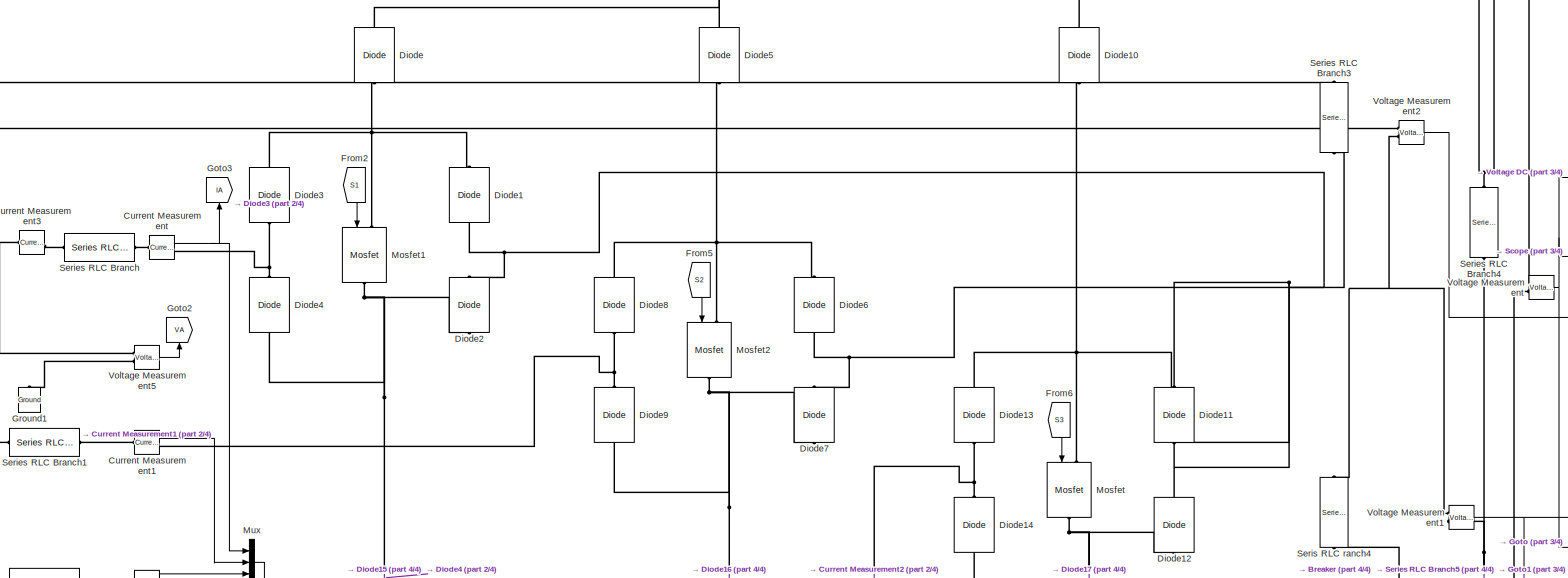
[diagram: root canvas - part 1/4, top center region]
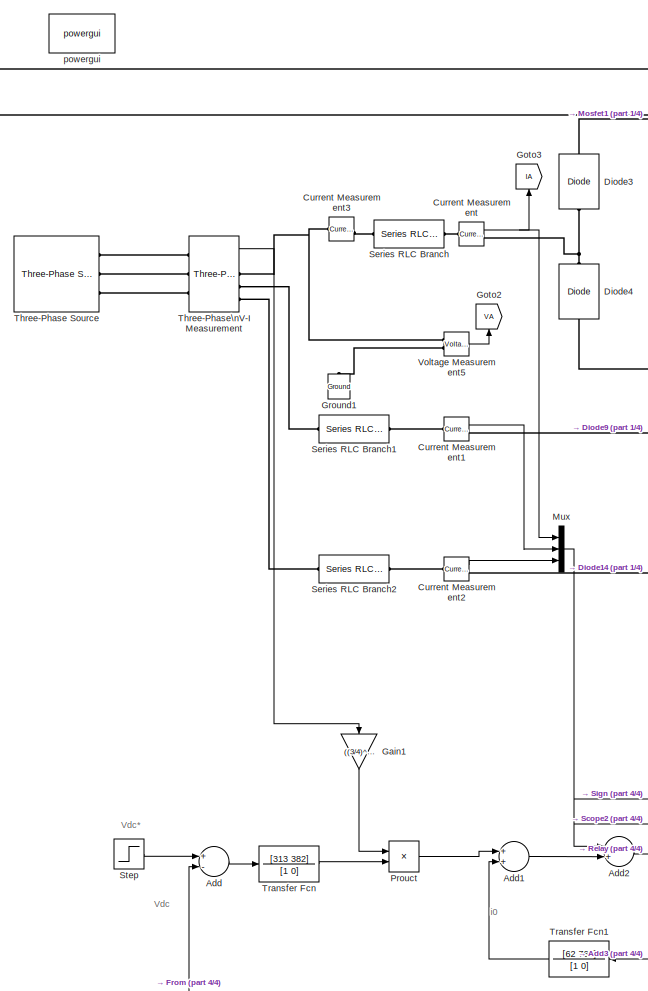
[diagram: root canvas - part 2/4, left side, full height]
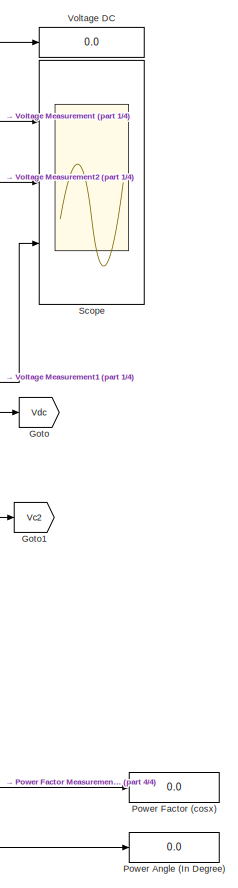
[diagram: root canvas - part 3/4, middle right region]
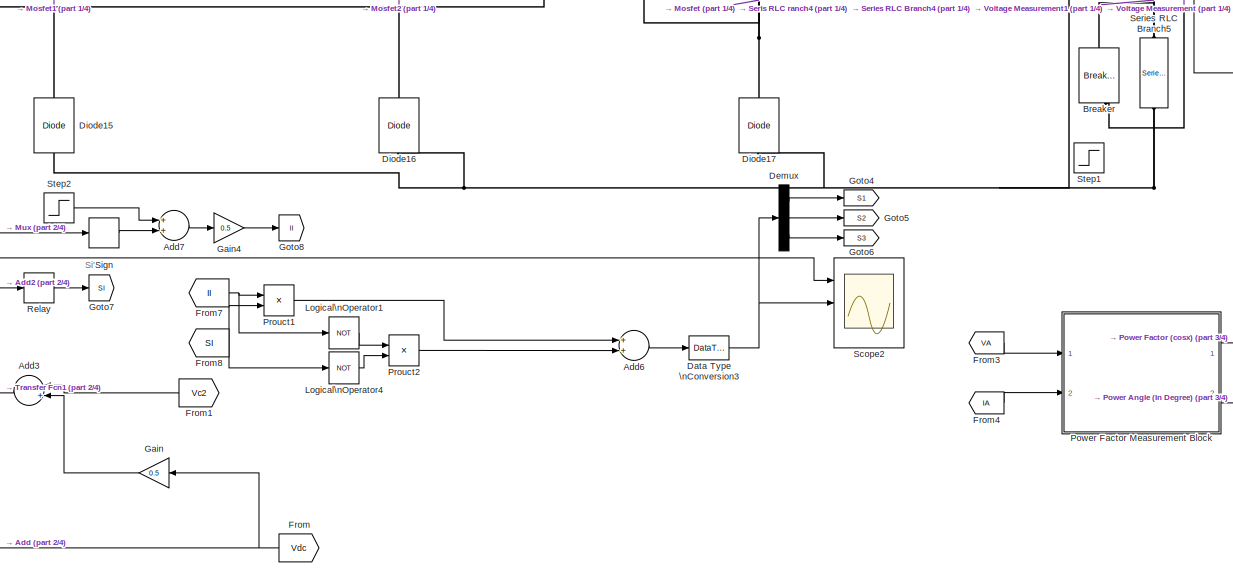
[diagram: root canvas - part 4/4, bottom center region]
MODEL Closed_Loop
KIND model
BLOCK [Sum] Add
  InputSameDT = off
  Inputs = +-
  OutDataTypeStr = Inherit: Inherit via internal rule
  Ports = [2, 1]
  SID = 248
  SaturateOnIntegerOverflow = off
BLOCK [Sum] Add1
  InputSameDT = off
  OutDataTypeStr = Inherit: Inherit via internal rule
  Ports = [2, 1]
  SID = 249
  SaturateOnIntegerOverflow = off
BLOCK [Sum] Add2
  InputSameDT = off
  Inputs = -+
  OutDataTypeStr = Inherit: Inherit via internal rule
  Ports = [2, 1]
  SID = 250
  SaturateOnIntegerOverflow = off
BLOCK [Sum] Add3
  InputSameDT = off
  Inputs = -+
  OutDataTypeStr = Inherit: Inherit via internal rule
  Ports = [2, 1]
  SID = 251
  SaturateOnIntegerOverflow = off
BLOCK [Sum] Add6
  InputSameDT = off
  OutDataTypeStr = Inherit: Inherit via internal rule
  Ports = [2, 1]
  SID = 269
  SaturateOnIntegerOverflow = off
BLOCK [Sum] Add7
  InputSameDT = off
  OutDataTypeStr = Inherit: Inherit via internal rule
  Ports = [2, 1]
  SID = 277
  SaturateOnIntegerOverflow = off
BLOCK [Reference] Breaker  REF=powerlib/Elements/Breaker
  BreakerResistance = 0.01
  External = on
  InitialState = 0
  Measurements = None
  MoreParameters = off
  NoBreakLoop = off
  Ports = [1, 0, 0, 0, 0, 1, 1]
  SID = 181
  SnubberCapacitance = inf
  SnubberResistance = 1e6
  SourceBlock = powerlib/Elements/Breaker
  SourceType = Breaker
  SwitchingTimes = [ 1/60  5/60 ]
BLOCK [Reference] Current Measurement  REF=powerlib/Measurements/Current Measurement
  OutputType = Complex
  PSBequivalent = 0
  PhasorSimulation = off
  Ports = [0, 1, 0, 0, 0, 1, 1]
  SID = 173
  SourceBlock = powerlib/Measurements/Current Measurement
  SourceType = Current Measurement
BLOCK [Reference] Current Measurement1  REF=powerlib/Measurements/Current Measurement
  OutputType = Complex
  PSBequivalent = 0
  PhasorSimulation = off
  Ports = [0, 1, 0, 0, 0, 1, 1]
  SID = 174
  SourceBlock = powerlib/Measurements/Current Measurement
  SourceType = Current Measurement
BLOCK [Reference] Current Measurement2  REF=powerlib/Measurements/Current Measurement
  OutputType = Complex
  PSBequivalent = 0
  PhasorSimulation = off
  Ports = [0, 1, 0, 0, 0, 1, 1]
  SID = 175
  SourceBlock = powerlib/Measurements/Current Measurement
  SourceType = Current Measurement
BLOCK [Reference] Current Measurement3  REF=powerlib/Measurements/Current Measurement
  OutputType = Complex
  PSBequivalent = 0
  PhasorSimulation = off
  Ports = [0, 1, 0, 0, 0, 1, 1]
  SID = 290
  SourceBlock = powerlib/Measurements/Current Measurement
  SourceType = Current Measurement
BLOCK [DataTypeConversion] Data Type \nConversion3
  OutDataTypeStr = boolean
  SID = 254
BLOCK [Demux] Demux
  DisplayOption = bar
  Outputs = 3
  Ports = [1, 3]
  SID = 172
BLOCK [Reference] Diode  REF=powerlib/Power\nElectronics/Diode
  Cs = 250e-9
  IC = 0
  Lon = 0
  Measurements = off
  Ports = [0, 0, 0, 0, 0, 1, 1]
  Ron = 0.001
  Rs = 500
  SID = 44
  SourceBlock = powerlib/Power\nElectronics/Diode
  SourceType = Diode
  UseSnubber = off
  Vf = 0.8
BLOCK [Reference] Diode1  REF=powerlib/Power\nElectronics/Diode
  Cs = 250e-9
  IC = 0
  Lon = 0
  Measurements = off
  Ports = [0, 0, 0, 0, 0, 1, 1]
  Ron = 0.001
  Rs = 500
  SID = 45
  SourceBlock = powerlib/Power\nElectronics/Diode
  SourceType = Diode
  UseSnubber = off
  Vf = 0.8
BLOCK [Reference] Diode10  REF=powerlib/Power\nElectronics/Diode
  Cs = 250e-9
  IC = 0
  Lon = 0
  Measurements = off
  Ports = [0, 0, 0, 0, 0, 1, 1]
  Ron = 0.001
  Rs = 500
  SID = 55
  SourceBlock = powerlib/Power\nElectronics/Diode
  SourceType = Diode
  UseSnubber = off
  Vf = 0.8
BLOCK [Reference] Diode11  REF=powerlib/Power\nElectronics/Diode
  Cs = 250e-9
  IC = 0
  Lon = 0
  Measurements = off
  Ports = [0, 0, 0, 0, 0, 1, 1]
  Ron = 0.001
  Rs = 500
  SID = 56
  SourceBlock = powerlib/Power\nElectronics/Diode
  SourceType = Diode
  UseSnubber = off
  Vf = 0.8
BLOCK [Reference] Diode12  REF=powerlib/Power\nElectronics/Diode
  Cs = 250e-9
  IC = 0
  Lon = 0
  Measurements = off
  Ports = [0, 0, 0, 0, 0, 1, 1]
  Ron = 0.001
  Rs = 500
  SID = 57
  SourceBlock = powerlib/Power\nElectronics/Diode
  SourceType = Diode
  UseSnubber = off
  Vf = 0.8
BLOCK [Reference] Diode13  REF=powerlib/Power\nElectronics/Diode
  Cs = 250e-9
  IC = 0
  Lon = 0
  Measurements = off
  Ports = [0, 0, 0, 0, 0, 1, 1]
  Ron = 0.001
  Rs = 500
  SID = 58
  SourceBlock = powerlib/Power\nElectronics/Diode
  SourceType = Diode
  UseSnubber = off
  Vf = 0.8
BLOCK [Reference] Diode14  REF=powerlib/Power\nElectronics/Diode
  Cs = 250e-9
  IC = 0
  Lon = 0
  Measurements = off
  Ports = [0, 0, 0, 0, 0, 1, 1]
  Ron = 0.001
  Rs = 500
  SID = 59
  SourceBlock = powerlib/Power\nElectronics/Diode
  SourceType = Diode
  UseSnubber = off
  Vf = 0.8
BLOCK [Reference] Diode15  REF=powerlib/Power\nElectronics/Diode
  Cs = 250e-9
  IC = 0
  Lon = 0
  Measurements = off
  Ports = [0, 0, 0, 0, 0, 1, 1]
  Ron = 0.001
  Rs = 500
  SID = 61
  SourceBlock = powerlib/Power\nElectronics/Diode
  SourceType = Diode
  UseSnubber = off
  Vf = 0.8
BLOCK [Reference] Diode16  REF=powerlib/Power\nElectronics/Diode
  Cs = 250e-9
  IC = 0
  Lon = 0
  Measurements = off
  Ports = [0, 0, 0, 0, 0, 1, 1]
  Ron = 0.001
  Rs = 500
  SID = 62
  SourceBlock = powerlib/Power\nElectronics/Diode
  SourceType = Diode
  UseSnubber = off
  Vf = 0.8
BLOCK [Reference] Diode17  REF=powerlib/Power\nElectronics/Diode
  Cs = 250e-9
  IC = 0
  Lon = 0
  Measurements = off
  Ports = [0, 0, 0, 0, 0, 1, 1]
  Ron = 0.001
  Rs = 500
  SID = 63
  SourceBlock = powerlib/Power\nElectronics/Diode
  SourceType = Diode
  UseSnubber = off
  Vf = 0.8
BLOCK [Reference] Diode2  REF=powerlib/Power\nElectronics/Diode
  Cs = 250e-9
  IC = 0
  Lon = 0
  Measurements = off
  Ports = [0, 0, 0, 0, 0, 1, 1]
  Ron = 0.001
  Rs = 500
  SID = 46
  SourceBlock = powerlib/Power\nElectronics/Diode
  SourceType = Diode
  UseSnubber = off
  Vf = 0.8
BLOCK [Reference] Diode3  REF=powerlib/Power\nElectronics/Diode
  Cs = 250e-9
  IC = 0
  Lon = 0
  Measurements = off
  Ports = [0, 0, 0, 0, 0, 1, 1]
  Ron = 0.001
  Rs = 500
  SID = 47
  SourceBlock = powerlib/Power\nElectronics/Diode
  SourceType = Diode
  UseSnubber = off
  Vf = 0.8
BLOCK [Reference] Diode4  REF=powerlib/Power\nElectronics/Diode
  Cs = 250e-9
  IC = 0
  Lon = 0
  Measurements = off
  Ports = [0, 0, 0, 0, 0, 1, 1]
  Ron = 0.001
  Rs = 500
  SID = 48
  SourceBlock = powerlib/Power\nElectronics/Diode
  SourceType = Diode
  UseSnubber = off
  Vf = 0.8
BLOCK [Reference] Diode5  REF=powerlib/Power\nElectronics/Diode
  Cs = 250e-9
  IC = 0
  Lon = 0
  Measurements = off
  Ports = [0, 0, 0, 0, 0, 1, 1]
  Ron = 0.001
  Rs = 500
  SID = 49
  SourceBlock = powerlib/Power\nElectronics/Diode
  SourceType = Diode
  UseSnubber = off
  Vf = 0.8
BLOCK [Reference] Diode6  REF=powerlib/Power\nElectronics/Diode
  Cs = 250e-9
  IC = 0
  Lon = 0
  Measurements = off
  Ports = [0, 0, 0, 0, 0, 1, 1]
  Ron = 0.001
  Rs = 500
  SID = 50
  SourceBlock = powerlib/Power\nElectronics/Diode
  SourceType = Diode
  UseSnubber = off
  Vf = 0.8
BLOCK [Reference] Diode7  REF=powerlib/Power\nElectronics/Diode
  Cs = 250e-9
  IC = 0
  Lon = 0
  Measurements = off
  Ports = [0, 0, 0, 0, 0, 1, 1]
  Ron = 0.001
  Rs = 500
  SID = 51
  SourceBlock = powerlib/Power\nElectronics/Diode
  SourceType = Diode
  UseSnubber = off
  Vf = 0.8
BLOCK [Reference] Diode8  REF=powerlib/Power\nElectronics/Diode
  Cs = 250e-9
  IC = 0
  Lon = 0
  Measurements = off
  Ports = [0, 0, 0, 0, 0, 1, 1]
  Ron = 0.001
  Rs = 500
  SID = 52
  SourceBlock = powerlib/Power\nElectronics/Diode
  SourceType = Diode
  UseSnubber = off
  Vf = 0.8
BLOCK [Reference] Diode9  REF=powerlib/Power\nElectronics/Diode
  Cs = 250e-9
  IC = 0
  Lon = 0
  Measurements = off
  Ports = [0, 0, 0, 0, 0, 1, 1]
  Ron = 0.001
  Rs = 500
  SID = 53
  SourceBlock = powerlib/Power\nElectronics/Diode
  SourceType = Diode
  UseSnubber = off
  Vf = 0.8
BLOCK [From] From
  GotoTag = Vdc
  SID = 162
BLOCK [From] From1
  GotoTag = Vc2
  SID = 165
BLOCK [From] From2
  GotoTag = S1
  SID = 245
BLOCK [From] From3
  GotoTag = VA
  SID = 213
BLOCK [From] From4
  GotoTag = IA
  SID = 214
BLOCK [From] From5
  GotoTag = S2
  SID = 246
BLOCK [From] From6
  GotoTag = S3
  SID = 247
BLOCK [From] From7
  GotoTag = II
  SID = 258
BLOCK [From] From8
  GotoTag = SI
  SID = 259
BLOCK [Gain] Gain
  Gain = 0.5
  OutDataTypeStr = Inherit: Inherit via internal rule
  ParamDataTypeStr = Inherit: Inherit via internal rule
  SID = 157
  SaturateOnIntegerOverflow = off
BLOCK [Gain] Gain1
  Gain = ((3/4)^(0.5))/400
  OutDataTypeStr = Inherit: Inherit via internal rule
  ParamDataTypeStr = Inherit: Inherit via internal rule
  SID = 169
  SaturateOnIntegerOverflow = off
BLOCK [Gain] Gain4
  Gain = 0.5
  OutDataTypeStr = Inherit: Inherit via internal rule
  ParamDataTypeStr = Inherit: Inherit via internal rule
  SID = 279
  SaturateOnIntegerOverflow = off
BLOCK [Goto] Goto
  GotoTag = Vdc
  SID = 161
BLOCK [Goto] Goto1
  GotoTag = Vc2
  SID = 164
BLOCK [Goto] Goto2
  GotoTag = VA
  SID = 233
BLOCK [Goto] Goto3
  GotoTag = IA
  SID = 237
BLOCK [Goto] Goto4
  GotoTag = S1
  SID = 242
BLOCK [Goto] Goto5
  GotoTag = S2
  SID = 243
BLOCK [Goto] Goto6
  GotoTag = S3
  SID = 244
BLOCK [Goto] Goto7
  GotoTag = SI
  SID = 256
BLOCK [Goto] Goto8
  GotoTag = II
  SID = 257
BLOCK [Reference] Ground1  REF=powerlib/Elements/Ground
  LConnTagsString = a
  Ports = [0, 0, 0, 0, 0, 1]
  SID = 234
  SourceBlock = powerlib/Elements/Ground
  SourceType = Ground
BLOCK [Logic] Logical\nOperator1
  AllPortsSameDT = off
  Operator = NOT
  OutDataTypeStr = boolean
  Ports = [1, 1]
  SID = 281
BLOCK [Logic] Logical\nOperator4
  AllPortsSameDT = off
  Operator = NOT
  OutDataTypeStr = boolean
  Ports = [1, 1]
  SID = 282
BLOCK [Reference] Mosfet  REF=powerlib/Power\nElectronics/Mosfet
  Cs = inf
  IC = 0
  Lon = 0
  Measurements = off
  Ports = [1, 0, 0, 0, 0, 1, 1]
  Rd = 0.01
  Ron = 0.1
  Rs = 1e5
  SID = 286
  SourceBlock = powerlib/Power\nElectronics/Mosfet
  SourceType = Mosfet
  Vfd = 0
BLOCK [Reference] Mosfet1  REF=powerlib/Power\nElectronics/Mosfet
  Cs = inf
  IC = 0
  Lon = 0
  Measurements = off
  Ports = [1, 0, 0, 0, 0, 1, 1]
  Rd = 0.01
  Ron = 0.1
  Rs = 1e5
  SID = 287
  SourceBlock = powerlib/Power\nElectronics/Mosfet
  SourceType = Mosfet
  Vfd = 0
BLOCK [Reference] Mosfet2  REF=powerlib/Power\nElectronics/Mosfet
  Cs = inf
  IC = 0
  Lon = 0
  Measurements = off
  Ports = [1, 0, 0, 0, 0, 1, 1]
  Rd = 0.01
  Ron = 0.1
  Rs = 1e5
  SID = 288
  SourceBlock = powerlib/Power\nElectronics/Mosfet
  SourceType = Mosfet
  Vfd = 0
BLOCK [Mux] Mux
  DisplayOption = bar
  Inputs = 3
  Ports = [3, 1]
  SID = 176
BLOCK [Display] Power Angle (In Degree)
  Decimation = 1
  Lockdown = off
  Ports = [1]
  SID = 215
BLOCK [Display] Power Factor (cosx)
  Decimation = 1
  Lockdown = off
  Ports = [1]
  SID = 216
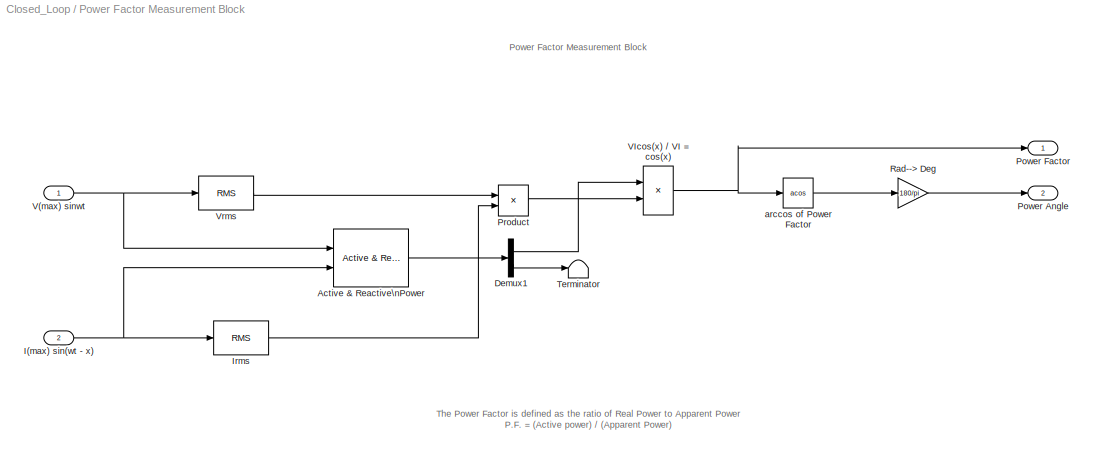
BLOCK [SubSystem] Power Factor Measurement Block
  FunctionWithSeparateData = off
  MaskHideContents = off
  MinAlgLoopOccurrences = off
  Opaque = off
  Ports = [2, 2]
  PropExecContextOutsideSubsystem = off
  RTWSystemCode = Auto
  RequestExecContextInheritance = off
  SID = 217
BLOCK [Reference] Power Factor Measurement Block/Active & Reactive\nPower  REF=powerlib_extras/Measurements/Active & Reactive\nPower
  Ports = [2, 1]
  SID = 220
  SourceBlock = powerlib_extras/Measurements/Active & Reactive\nPower
  SourceType = Active & Reactive Power
  f1 = 50
BLOCK [Demux] Power Factor Measurement Block/Demux1
  DisplayOption = bar
  Outputs = 2
  Ports = [1, 2]
  SID = 221
BLOCK [Inport] Power Factor Measurement Block/I(max) sin(wt - x)
  IconDisplay = Port number
  Port = 2
  SID = 219
BLOCK [Reference] Power Factor Measurement Block/Irms  REF=powerlib_extras/Measurements/RMS
  Ports = [1, 1]
  SID = 222
  SourceBlock = powerlib_extras/Measurements/RMS
  SourceType = RMS
  f1 = 50
BLOCK [Outport] Power Factor Measurement Block/Power Angle
  IconDisplay = Port number
  Port = 2
  SID = 230
BLOCK [Outport] Power Factor Measurement Block/Power Factor
  IconDisplay = Port number
  SID = 229
BLOCK [Product] Power Factor Measurement Block/Product
  InputSameDT = off
  OutDataTypeStr = Inherit: Inherit via internal rule
  Ports = [2, 1]
  SID = 223
  SaturateOnIntegerOverflow = off
BLOCK [Gain] Power Factor Measurement Block/Rad--> Deg
  Gain = 180/pi
  SID = 224
BLOCK [Terminator] Power Factor Measurement Block/Terminator
  SID = 225
BLOCK [Inport] Power Factor Measurement Block/V(max) sinwt
  IconDisplay = Port number
  SID = 218
BLOCK [Product] Power Factor Measurement Block/VIcos(x) // VI = cos(x)
  InputSameDT = off
  Inputs = */
  OutDataTypeStr = Inherit: Inherit via internal rule
  Ports = [2, 1]
  RndMeth = Floor
  SID = 226
  SaturateOnIntegerOverflow = off
BLOCK [Reference] Power Factor Measurement Block/Vrms  REF=powerlib_extras/Measurements/RMS
  Ports = [1, 1]
  SID = 227
  SourceBlock = powerlib_extras/Measurements/RMS
  SourceType = RMS
  f1 = 50
BLOCK [Trigonometry] Power Factor Measurement Block/arccos of Power Factor
  Operator = acos
  OutputSignalType = real
  Ports = [1, 1]
  SID = 228
BLOCK [Product] Prouct
  InputSameDT = off
  OutDataTypeStr = Inherit: Inherit via internal rule
  Ports = [2, 1]
  SID = 147
  SaturateOnIntegerOverflow = off
BLOCK [Product] Prouct1
  InputSameDT = off
  OutDataTypeStr = Inherit: Inherit via internal rule
  Ports = [2, 1]
  SID = 253
  SaturateOnIntegerOverflow = off
BLOCK [Product] Prouct2
  InputSameDT = off
  OutDataTypeStr = Inherit: Inherit via internal rule
  Ports = [2, 1]
  SID = 283
  SaturateOnIntegerOverflow = off
BLOCK [Relay] Relay
  InputProcessing = Elements as channels (sample based)
  OffSwitchValue = -0.01
  OnSwitchValue = 0.01
  SID = 152
BLOCK [Scope] Scope
  DataFormat = StructureWithTime
  Floating = off
  LimitDataPoints = off
  NumInputPorts = 3
  Ports = [3]
  SID = 78
  SampleTime = 0
  SaveName = Vdc
  SaveToWorkspace = on
  ShowLegends = off
  TimeRange = 0.4
  YMax = 800~475~326
  YMin = 762.5~445~315
  ZoomMode = xonly
BLOCK [Scope] Scope2
  DataFormat = StructureWithTime
  Floating = off
  NumInputPorts = 3
  Ports = [3]
  SID = 263
  SampleTime = 0
  SaveName = Isbc1
  SaveToWorkspace = on
  ShowLegends = off
  YMax = 150~1~100000
  YMin = -125~-0.1~-100000
  ZoomMode = xonly
BLOCK [Reference] Series RLC Branch  REF=powerlib/Elements/Series RLC Branch
  BranchType = L
  Capacitance = 1e-6
  Inductance = 20e-3
  InitialCurrent = 0
  InitialVoltage = 0
  LConnTagsString = __new0
  Measurements = None
  Ports = [0, 0, 0, 0, 0, 1, 1]
  RConnTagsString = __new0
  Resistance = 1
  SID = 65
  SetiL0 = off
  Setx0 = off
  SourceBlock = powerlib/Elements/Series RLC Branch
  SourceType = Series RLC Branch
BLOCK [Reference] Series RLC Branch1  REF=powerlib/Elements/Series RLC Branch
  BranchType = L
  Capacitance = 1e-6
  Inductance = 20e-3
  InitialCurrent = 0
  InitialVoltage = 0
  LConnTagsString = __new0
  Measurements = None
  Ports = [0, 0, 0, 0, 0, 1, 1]
  RConnTagsString = __new0
  Resistance = 1
  SID = 66
  SetiL0 = off
  Setx0 = off
  SourceBlock = powerlib/Elements/Series RLC Branch
  SourceType = Series RLC Branch
BLOCK [Reference] Series RLC Branch2  REF=powerlib/Elements/Series RLC Branch
  BranchType = L
  Capacitance = 1e-6
  Inductance = 20e-3
  InitialCurrent = 0
  InitialVoltage = 0
  LConnTagsString = __new0
  Measurements = None
  Ports = [0, 0, 0, 0, 0, 1, 1]
  RConnTagsString = __new0
  Resistance = 1
  SID = 67
  SetiL0 = off
  Setx0 = off
  SourceBlock = powerlib/Elements/Series RLC Branch
  SourceType = Series RLC Branch
BLOCK [Reference] Series RLC Branch3  REF=powerlib/Elements/Series RLC Branch
  BranchType = C
  Capacitance = 470e-6
  Inductance = 1e-3
  InitialCurrent = 0
  InitialVoltage = 0
  LConnTagsString = __new0
  Measurements = None
  Ports = [0, 0, 0, 0, 0, 1, 1]
  RConnTagsString = __new0
  Resistance = 1
  SID = 68
  SetiL0 = off
  Setx0 = off
  SourceBlock = powerlib/Elements/Series RLC Branch
  SourceType = Series RLC Branch
BLOCK [Reference] Series RLC Branch4  REF=powerlib/Elements/Series RLC Branch
  BranchType = R
  Capacitance = 1e-6
  Inductance = 1e-3
  InitialCurrent = 0
  InitialVoltage = 0
  LConnTagsString = __new0
  Measurements = None
  Ports = [0, 0, 0, 0, 0, 1, 1]
  RConnTagsString = __new0
  Resistance = 200
  SID = 238
  SetiL0 = off
  Setx0 = off
  SourceBlock = powerlib/Elements/Series RLC Branch
  SourceType = Series RLC Branch
BLOCK [Reference] Series RLC Branch5  REF=powerlib/Elements/Series RLC Branch
  BranchType = R
  Capacitance = 1e-6
  Inductance = 1e-3
  InitialCurrent = 0
  InitialVoltage = 0
  LConnTagsString = __new0
  Measurements = None
  Ports = [0, 0, 0, 0, 0, 1, 1]
  RConnTagsString = __new0
  Resistance = 200
  SID = 239
  SetiL0 = off
  Setx0 = off
  SourceBlock = powerlib/Elements/Series RLC Branch
  SourceType = Series RLC Branch
BLOCK [Reference] Seris RLC ranch4  REF=powerlib/Elements/Series RLC Branch
  BranchType = C
  Capacitance = 470e-6
  Inductance = 1e-3
  InitialCurrent = 0
  InitialVoltage = 0
  LConnTagsString = __new0
  Measurements = None
  Ports = [0, 0, 0, 0, 0, 1, 1]
  RConnTagsString = __new0
  Resistance = 1
  SID = 69
  SetiL0 = off
  Setx0 = off
  SourceBlock = powerlib/Elements/Series RLC Branch
  SourceType = Series RLC Branch
BLOCK [Signum] Sign
  SID = 252
BLOCK [Step] Step
  After = 750
  Before = 750
  SID = 167
  SampleTime = 0
  Time = 0
  VectorParams1D = off
BLOCK [Step] Step1
  SID = 182
  SampleTime = 0
  Time = 0.2
BLOCK [Step] Step2
  Before = 1
  SID = 285
  SampleTime = 0
  Time = 0
  VectorParams1D = off
BLOCK [Reference] Three-Phase Source  REF=powerlib/Electrical\nSources/Three-Phase Source
  BaseVoltage = 25e3
  BusType = swing
  Frequency = 50
  Inductance = 0
  InternalConnection = Yg
  PhaseAngle = 0
  Ports = [0, 0, 0, 0, 0, 0, 3]
  Pref = 0
  Qmax = inf
  Qmin = -inf
  Qref = 0
  Resistance = 0
  SID = 64
  ShortCircuitLevel = 100e6
  SourceBlock = powerlib/Electrical\nSources/Three-Phase Source
  SourceType = Three-Phase Source
  SpecifyImpedance = off
  Voltage = 400*(2^(0.5))
  XRratio = 7
BLOCK [Reference] Three-Phase\nV-I Measurement  REF=powerlib/Measurements/Three-Phase\nV-I Measurement
  CurrentMeasurement = yes
  Ipu = off
  LabelI = Iabc
  LabelV = Vabc
  OutputType = Complex
  PSBequivalent = 0
  Pbase = 100e6
  PhasorSimulation = off
  Ports = [0, 2, 0, 0, 0, 3, 3]
  SID = 72
  SetLabelI = off
  SetLabelV = off
  SourceBlock = powerlib/Measurements/Three-Phase\nV-I Measurement
  SourceType = Three-Phase VI Measurement
  Vbase = 500e3
  VoltageMeasurement = phase-to-ground
  Vpu = off
  VpuLL = off
BLOCK [TransferFcn] Transfer Fcn
  Denominator = [1 0]
  Numerator = [313 382]
  SID = 146
BLOCK [TransferFcn] Transfer Fcn1
  Denominator = [1 0]
  Numerator = [62 764]
  SID = 155
BLOCK [Display] Voltage DC
  Decimation = 1
  Lockdown = off
  Ports = [1]
  SID = 184
BLOCK [Reference] Voltage Measurement  REF=powerlib/Measurements/Voltage Measurement
  OutputType = Complex
  PSBequivalent = 0
  PhasorSimulation = off
  Ports = [0, 1, 0, 0, 0, 2]
  SID = 76
  SourceBlock = powerlib/Measurements/Voltage Measurement
  SourceType = Voltage Measurement
BLOCK [Reference] Voltage Measurement1  REF=powerlib/Measurements/Voltage Measurement
  OutputType = Complex
  PSBequivalent = 0
  PhasorSimulation = off
  Ports = [0, 1, 0, 0, 0, 2]
  SID = 163
  SourceBlock = powerlib/Measurements/Voltage Measurement
  SourceType = Voltage Measurement
BLOCK [Reference] Voltage Measurement2  REF=powerlib/Measurements/Voltage Measurement
  OutputType = Complex
  PSBequivalent = 0
  PhasorSimulation = off
  Ports = [0, 1, 0, 0, 0, 2]
  SID = 183
  SourceBlock = powerlib/Measurements/Voltage Measurement
  SourceType = Voltage Measurement
BLOCK [Reference] Voltage Measurement5  REF=powerlib/Measurements/Voltage Measurement
  OutputType = Complex
  PSBequivalent = 0
  PhasorSimulation = off
  Ports = [0, 1, 0, 0, 0, 2]
  SID = 235
  SourceBlock = powerlib/Measurements/Voltage Measurement
  SourceType = Voltage Measurement
BLOCK [Reference] powergui  REF=powerlib/powergui
  DisableRonSwitches = on
  DisableSnubberDevices = on
  DisableVfSwitches = on
  DisplayEquations = off
  DisplayStyle = 1
  EnableUseOfTLC = off
  ErrMax = 1e-4
  FreqAxis = off
  FunctionMessages = off
  HookPort = off
  Interpol = off
  Iterations = 50
  MaxFrequency = 1000
  Pbase = 100e6
  Ports = []
  Priority = 1
  ResistiveCurrentMeasurement = off
  RestoreLinks = warning
  SID = 20
  SPID = off
  SampleTime = 1/20000
  ShowGrid = off
  SolverType = Tustin
  SourceBlock = powerlib/powergui
  SourceType = PSB option menu block
  StartTime = 0.8
  SwTol = 0
  UnitsV = kV
  UnitsW = MW
  UserData = DataTag0
  UserDataPersistent = on
  Xlog = on
  Ylog = off
  ZoomFFT = off
  cycles = 2
  display = off
  echomessages = off
  frequency = 60
  frequencyindice = 50
  frequencyindicesteady = 1
  fundamental = 50
  methode = off
  save = off
  structure = Isbc1
  variable = ZData
  x0status = blocks
ANNOTATION (root): Si'
ANNOTATION (root): Vdc
ANNOTATION (root): Vdc*
ANNOTATION (root): i0
ANNOTATION Power Factor Measurement Block: Power Factor Measurement Block
ANNOTATION Power Factor Measurement Block: The Power Factor is defined as the ratio of Real Power to Apparent Power\nP.F. = (Active power) / (Apparent Power)
LINE Add1:1 -> Add2:2
LINE Add2:1 -> Relay:1
LINE Add3:1 -> Transfer Fcn1:1
LINE Add6:1 -> Data Type \nConversion3:1
LINE Add7:1 -> Gain4:1
LINE Add:1 -> Transfer Fcn:1
LINE Current Measurement1:1 -> Mux:2
LINE Current Measurement2:1 -> Mux:3
NET Current Measurement:1 -> Goto3:1, Mux:1
NET Data Type \nConversion3:1 -> Demux:1, Scope2:2
LINE Demux:1 -> Goto4:1
LINE Demux:2 -> Goto5:1
LINE Demux:3 -> Goto6:1
LINE From1:1 -> Add3:1
LINE From2:1 -> Mosfet1:1
LINE From3:1 -> Power Factor Measurement Block:1
LINE From4:1 -> Power Factor Measurement Block:2
LINE From5:1 -> Mosfet2:1
LINE From6:1 -> Mosfet:1
NET From7:1 -> Logical\nOperator1:1, Prouct1:1
NET From8:1 -> Logical\nOperator4:1, Prouct1:2
NET From:1 -> Add:2, Gain:1
LINE Gain1:1 -> Prouct:1
LINE Gain4:1 -> Goto8:1
LINE Gain:1 -> Add3:2
LINE Logical\nOperator1:1 -> Prouct2:1
LINE Logical\nOperator4:1 -> Prouct2:2
NET Mux:1 -> Add2:1, Scope2:1, Sign:1
LINE Power Factor Measurement Block/Active & Reactive\nPower:1 -> Power Factor Measurement Block/Demux1:1
LINE Power Factor Measurement Block/Demux1:1 -> Power Factor Measurement Block/VIcos(x) // VI = cos(x):1
LINE Power Factor Measurement Block/Demux1:2 -> Power Factor Measurement Block/Terminator:1
NET Power Factor Measurement Block/I(max) sin(wt - x):1 -> Power Factor Measurement Block/Active & Reactive\nPower:2, Power Factor Measurement Block/Irms:1
LINE Power Factor Measurement Block/Irms:1 -> Power Factor Measurement Block/Product:2
LINE Power Factor Measurement Block/Product:1 -> Power Factor Measurement Block/VIcos(x) // VI = cos(x):2
LINE Power Factor Measurement Block/Rad--> Deg:1 -> Power Factor Measurement Block/Power Angle:1
NET Power Factor Measurement Block/V(max) sinwt:1 -> Power Factor Measurement Block/Active & Reactive\nPower:1, Power Factor Measurement Block/Vrms:1
NET Power Factor Measurement Block/VIcos(x) // VI = cos(x):1 -> Power Factor Measurement Block/Power Factor:1, Power Factor Measurement Block/arccos of Power Factor:1
LINE Power Factor Measurement Block/Vrms:1 -> Power Factor Measurement Block/Product:1
LINE Power Factor Measurement Block/arccos of Power Factor:1 -> Power Factor Measurement Block/Rad--> Deg:1
LINE Power Factor Measurement Block:1 -> Power Factor (cosx):1
LINE Power Factor Measurement Block:2 -> Power Angle (In Degree):1
LINE Prouct1:1 -> Add6:1
LINE Prouct2:1 -> Add6:2
LINE Prouct:1 -> Add1:1
LINE Relay:1 -> Goto7:1
LINE Sign:1 -> Add7:2
LINE Step2:1 -> Add7:1
LINE Step:1 -> Add:1
LINE Three-Phase\nV-I Measurement:1 -> Gain1:1
LINE Transfer Fcn1:1 -> Add1:2
LINE Transfer Fcn:1 -> Prouct:2
NET Voltage Measurement1:1 -> Goto1:1, Scope:3
LINE Voltage Measurement2:1 -> Scope:2
LINE Voltage Measurement5:1 -> Goto2:1
NET Voltage Measurement:1 -> Goto:1, Scope:1, Voltage DC:1
PNET net1: Breaker:LConn1 -- Diode15:LConn1 -- Diode16:LConn1 -- Diode17:LConn1 -- Series RLC Branch5:RConn1 -- Seris RLC ranch4:RConn1 -- Voltage Measurement1:LConn2 -- Voltage Measurement:LConn2
PNET net2: Breaker:RConn1 -- Series RLC Branch4:RConn1 -- Series RLC Branch5:LConn1
PLINE Current Measurement1:LConn1 -- Series RLC Branch1:RConn1
PNET net3: Current Measurement1:RConn1 -- Diode8:LConn1 -- Diode9:RConn1
PLINE Current Measurement2:LConn1 -- Series RLC Branch2:RConn1
PNET net4: Current Measurement2:RConn1 -- Diode13:LConn1 -- Diode14:RConn1
PNET net5: Current Measurement3:LConn1 -- Three-Phase\nV-I Measurement:RConn1 -- Voltage Measurement5:LConn1
PLINE Current Measurement3:RConn1 -- Series RLC Branch:LConn1
PLINE Current Measurement:LConn1 -- Series RLC Branch:RConn1
PNET net6: Current Measurement:RConn1 -- Diode3:LConn1 -- Diode4:RConn1
PNET net7: Diode10:LConn1 -- Diode11:RConn1 -- Diode13:RConn1 -- Mosfet:LConn1
PNET net8: Diode10:RConn1 -- Diode5:RConn1 -- Diode:RConn1 -- Series RLC Branch3:LConn1 -- Series RLC Branch4:LConn1 -- Voltage Measurement2:LConn1 -- Voltage Measurement:LConn1
PNET net9: Diode11:LConn1 -- Diode12:RConn1 -- Diode1:LConn1 -- Diode2:RConn1 -- Diode6:LConn1 -- Diode7:RConn1 -- Series RLC Branch3:RConn1 -- Seris RLC ranch4:LConn1 -- Voltage Measurement1:LConn1 -- Voltage Measurement2:LConn2
PNET net10: Diode12:LConn1 -- Diode14:LConn1 -- Diode17:RConn1 -- Mosfet:RConn1
PNET net11: Diode15:RConn1 -- Diode2:LConn1 -- Diode4:LConn1 -- Mosfet1:RConn1
PNET net12: Diode16:RConn1 -- Diode7:LConn1 -- Diode9:LConn1 -- Mosfet2:RConn1
PNET net13: Diode1:RConn1 -- Diode3:RConn1 -- Diode:LConn1 -- Mosfet1:LConn1
PNET net14: Diode5:LConn1 -- Diode6:RConn1 -- Diode8:RConn1 -- Mosfet2:LConn1
PLINE Ground1:LConn1 -- Voltage Measurement5:LConn2
PLINE Series RLC Branch1:LConn1 -- Three-Phase\nV-I Measurement:RConn2
PLINE Series RLC Branch2:LConn1 -- Three-Phase\nV-I Measurement:RConn3
PLINE Three-Phase Source:RConn1 -- Three-Phase\nV-I Measurement:LConn1
PLINE Three-Phase Source:RConn2 -- Three-Phase\nV-I Measurement:LConn2
PLINE Three-Phase Source:RConn3 -- Three-Phase\nV-I Measurement:LConn3
note: NET lines group one-source signal fan-out (src -> all destinations, sorted); 1:1 wires keep LINE; PNET lines group multi-terminal physical nets as a canonical sorted terminal list (undirected conserving connections); 2-terminal nets keep the pairwise PLINE form
